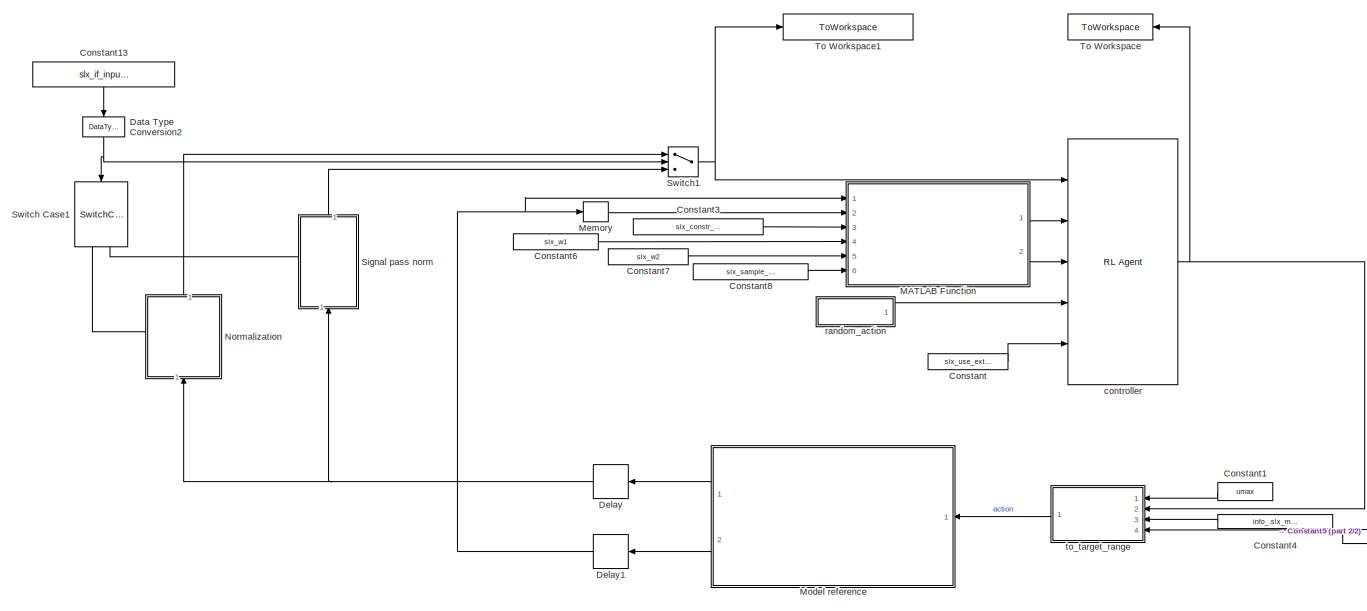
[diagram: root canvas - part 1/2, center side, full height]
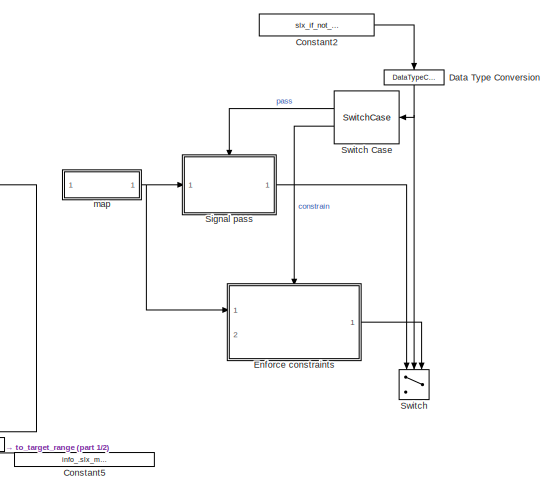
[diagram: root canvas - part 2/2, right side, full height]
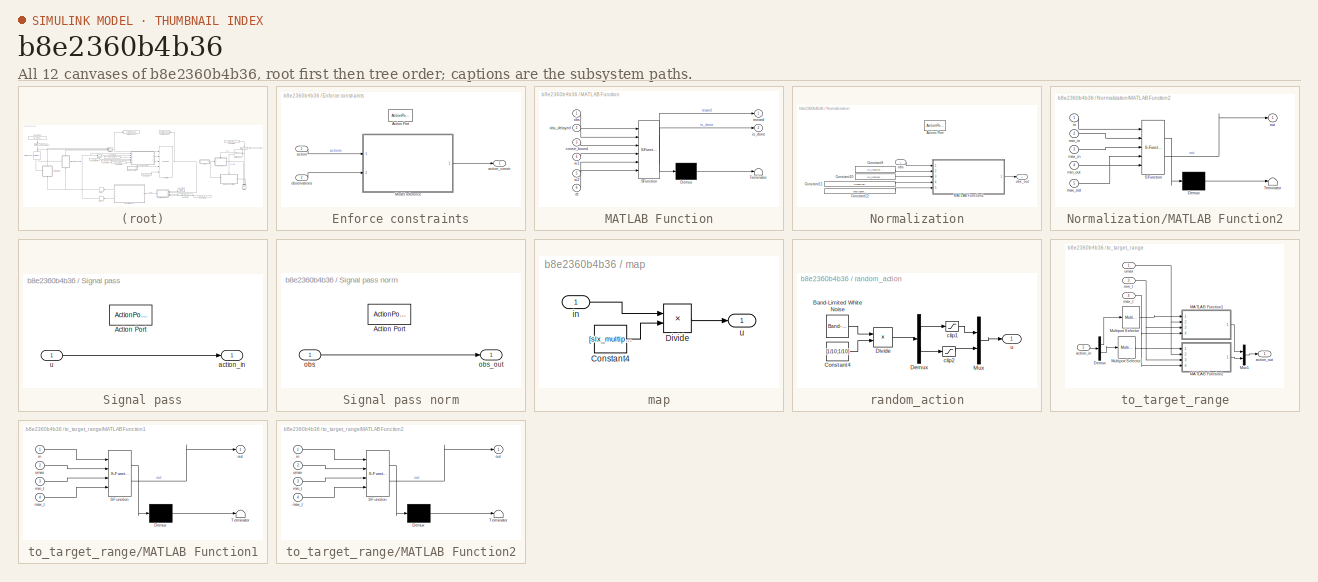
[diagram: thumbnail index - all 12 canvases of the model, root first then tree order]
MODEL slx_b8e2360b4b36
KIND model
CONFIG AbsTol = auto
CONFIG EnableMultiTasking = off
CONFIG FixedStep = sample_time_for_controller
CONFIG MaxStep = auto
CONFIG MinStep = auto
CONFIG RelTol = 1e-3
CONFIG SampleTimeConstraint = Unconstrained
CONFIG SolverName = FixedStepAuto
CONFIG StartTime = 0.0
CONFIG StopTime = 10.0
BLOCK [Constant] Constant
  Value = slx_use_external
BLOCK [Constant] Constant1
  NameLocation = top
  Value = umax
BLOCK [Constant] Constant13
  NameLocation = left
  Value = slx_if_input_normalization
BLOCK [Constant] Constant2
  Commented = on
  Value = slx_if_not_constrain
BLOCK [Constant] Constant3
  Value = slx_constr_bound
BLOCK [Constant] Constant4
  NameLocation = top
  Value = info_.slx_min_t
BLOCK [Constant] Constant5
  NameLocation = top
  Value = info_.slx_max_t
BLOCK [Constant] Constant6
  Value = slx_w1
BLOCK [Constant] Constant7
  Value = slx_w2
BLOCK [Constant] Constant8
  Value = slx_sample_time
BLOCK [DataTypeConversion] Data Type Conversion
  Commented = on
  NameLocation = left
  RndMeth = Floor
  SaturateOnIntegerOverflow = off
BLOCK [DataTypeConversion] Data Type Conversion2
  NameLocation = left
  OutDataTypeStr = uint8
  RndMeth = Floor
  SaturateOnIntegerOverflow = off
BLOCK [Delay] Delay
  DelayLength = 1
  InitialCondition = 0
  InputPortMap = u0
  NameLocation = top
  Ports = [1, 1]
BLOCK [Delay] Delay1
  DelayLength = 1
  InitialCondition = 0
  InputPortMap = u0
  NameLocation = top
  Ports = [1, 1]
BLOCK [SubSystem] Enforce constraints
  Commented = on
  Ports = [2, 1, 0, 0, 0, 0, 0, 1]
  RequestExecContextInheritance = off
  TreatAsAtomicUnit = on
BLOCK [ActionPort] Enforce constraints/Action Port
BLOCK [ModelReference] Enforce constraints/Model reference
  ModelNameDialog = enforce_constraint.slx
  ModelReferenceVersion = 1.89
  Ports = [2, 1]
BLOCK [Inport] Enforce constraints/action
  PortDimensions = [agent_act_number  1 ]
BLOCK [Outport] Enforce constraints/action_constr
BLOCK [Inport] Enforce constraints/observations
  Port = 2
  PortDimensions = [agent_obs_number  1]
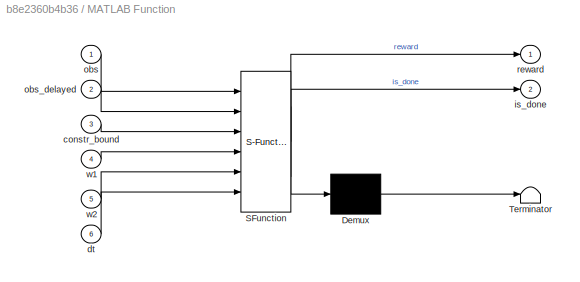
BLOCK [SubSystem] MATLAB Function
  ErrorFcn = Stateflow.Translate.translate
  PermitHierarchicalResolution = ExplicitOnly
  Ports = [6, 2]
  RequestExecContextInheritance = off
  SFBlockType = MATLAB Function
  TreatAsAtomicUnit = on
BLOCK [Demux] MATLAB Function/ Demux 
  Outputs = 1
  Ports = [1, 1]
BLOCK [S-Function] MATLAB Function/ SFunction 
  EnableBusSupport = on
  FunctionName = sf_sfun
  PortCounts = [6 3]
  Ports = [6, 3]
  SFcnIsStateOwnerBlock = off
  SFunctionDeploymentMode = off
  Tag = Stateflow S-Function 2
BLOCK [Terminator] MATLAB Function/ Terminator 
BLOCK [Inport] MATLAB Function/constr_bound
  Port = 3
BLOCK [Inport] MATLAB Function/dt
  Port = 6
BLOCK [Outport] MATLAB Function/is_done
  Port = 2
BLOCK [Inport] MATLAB Function/obs
BLOCK [Inport] MATLAB Function/obs_delayed
  Port = 2
BLOCK [Outport] MATLAB Function/reward
BLOCK [Inport] MATLAB Function/w1
  Port = 4
BLOCK [Inport] MATLAB Function/w2
  Port = 5
BLOCK [Memory] Memory
BLOCK [ModelReference] Model reference
  ModelNameDialog = dynamic_model_euler.slx
  ModelReferenceVersion = 6.750
  NameLocation = top
  Ports = [1, 2]
BLOCK [SubSystem] Normalization
  NameLocation = right
  Ports = [1, 1, 0, 0, 0, 0, 0, 1]
  RequestExecContextInheritance = off
  TreatAsAtomicUnit = on
BLOCK [ActionPort] Normalization/Action Port
  ActionPortLabel = case [ 1 ]:
BLOCK [Constant] Normalization/Constant10
  Value = slx_ObsMaximal
BLOCK [Constant] Normalization/Constant11
  Value = -1*ones([agent_obs_number 1])
BLOCK [Constant] Normalization/Constant12
  Value = ones([agent_obs_number 1])
BLOCK [Constant] Normalization/Constant9
  Value = slx_ObsMinimal
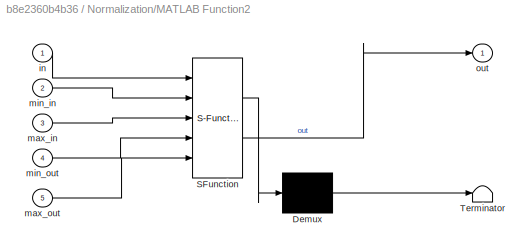
BLOCK [SubSystem] Normalization/MATLAB Function2
  ErrorFcn = Stateflow.Translate.translate
  PermitHierarchicalResolution = ExplicitOnly
  Ports = [5, 1]
  RequestExecContextInheritance = off
  SFBlockType = MATLAB Function
  TreatAsAtomicUnit = on
BLOCK [Demux] Normalization/MATLAB Function2/ Demux 
  Outputs = 1
  Ports = [1, 1]
BLOCK [S-Function] Normalization/MATLAB Function2/ SFunction 
  EnableBusSupport = on
  FunctionName = sf_sfun
  PortCounts = [5 2]
  Ports = [5, 2]
  SFcnIsStateOwnerBlock = off
  SFunctionDeploymentMode = off
  Tag = Stateflow S-Function 5
BLOCK [Terminator] Normalization/MATLAB Function2/ Terminator 
BLOCK [Inport] Normalization/MATLAB Function2/in
BLOCK [Inport] Normalization/MATLAB Function2/max_in
  Port = 3
BLOCK [Inport] Normalization/MATLAB Function2/max_out
  Port = 5
BLOCK [Inport] Normalization/MATLAB Function2/min_in
  Port = 2
BLOCK [Inport] Normalization/MATLAB Function2/min_out
  Port = 4
BLOCK [Outport] Normalization/MATLAB Function2/out
BLOCK [Inport] Normalization/obs
BLOCK [Outport] Normalization/obs_out
BLOCK [SubSystem] Signal pass
  Commented = on
  Ports = [1, 1, 0, 0, 0, 0, 0, 1]
  RequestExecContextInheritance = off
  TreatAsAtomicUnit = on
BLOCK [SubSystem] Signal pass norm
  NameLocation = right
  Ports = [1, 1, 0, 0, 0, 0, 0, 1]
  RequestExecContextInheritance = off
  TreatAsAtomicUnit = on
BLOCK [ActionPort] Signal pass norm/Action Port
  ActionPortLabel = default:
BLOCK [Inport] Signal pass norm/obs
BLOCK [Outport] Signal pass norm/obs_out
BLOCK [ActionPort] Signal pass/Action Port
BLOCK [Outport] Signal pass/action_in
BLOCK [Inport] Signal pass/u
BLOCK [Switch] Switch
  Commented = on
  Criteria = u2 > Threshold
  InputSameDT = off
  NameLocation = right
  SaturateOnIntegerOverflow = off
BLOCK [SwitchCase] Switch Case
  Commented = on
  NameLocation = top
  Ports = [1, 2]
BLOCK [SwitchCase] Switch Case1
  NameLocation = left
  Ports = [1, 2]
BLOCK [Switch] Switch1
  Criteria = u2 ~= 0
  InputSameDT = off
  NameLocation = top
  SaturateOnIntegerOverflow = off
BLOCK [ToWorkspace] To Workspace
  FixptAsFi = on
  MaxDataPoints = inf
  NameLocation = top
  Ports = [1]
  SampleTime = -1
  SaveFormat = Timeseries
  VariableName = agent_action
BLOCK [ToWorkspace] To Workspace1
  FixptAsFi = on
  MaxDataPoints = inf
  Ports = [1]
  SampleTime = -1
  SaveFormat = Timeseries
  VariableName = mapped_observations
BLOCK [Reference] controller  REF=rllib/RL Agent
  Ports = [5, 1]
  SourceBlock = rllib/RL Agent
  SourceProductBaseCode = RL
  SourceType = RL Agent
BLOCK [SubSystem] map
  Commented = on
  Ports = [1, 1]
  RequestExecContextInheritance = off
BLOCK [Constant] map/Constant4
  Value = [slx_multiplier;slx_multiplier]
BLOCK [Product] map/Divide
  Inputs = **
  Ports = [2, 1]
BLOCK [Inport] map/in
BLOCK [Outport] map/u
BLOCK [SubSystem] random_action
  Ports = [0, 1]
  RequestExecContextInheritance = off
BLOCK [Reference] random_action/Band-Limited White Noise  REF=simulink/Sources/Band-Limited
White Noise
  Ports = [0, 1]
  SourceBlock = simulink/Sources/Band-Limited\nWhite Noise
  SourceProductBaseCode = SL
  SourceType = Band-Limited White Noise.
BLOCK [Constant] random_action/Constant4
  Value = [1/10;1/10]
BLOCK [Demux] random_action/Demux
  Outputs = 2
  Ports = [1, 2]
BLOCK [Product] random_action/Divide
  Inputs = **
  Ports = [2, 1]
BLOCK [Mux] random_action/Mux
  DisplayOption = bar
  Inputs = 2
  Ports = [2, 1]
BLOCK [Saturate] random_action/clip1
  LowerLimit = -1
  UpperLimit = 1
BLOCK [Saturate] random_action/clip2
  LowerLimit = -1
  UpperLimit = 1
BLOCK [Outport] random_action/u
BLOCK [SubSystem] to_target_range
  NameLocation = top
  Ports = [4, 1]
  RequestExecContextInheritance = off
BLOCK [Demux] to_target_range/Demux
  Outputs = 2
  Ports = [1, 2]
BLOCK [SubSystem] to_target_range/MATLAB Function1
  ErrorFcn = Stateflow.Translate.translate
  PermitHierarchicalResolution = ExplicitOnly
  Ports = [4, 1]
  RequestExecContextInheritance = off
  SFBlockType = MATLAB Function
  TreatAsAtomicUnit = on
BLOCK [Demux] to_target_range/MATLAB Function1/ Demux 
  Outputs = 1
  Ports = [1, 1]
BLOCK [S-Function] to_target_range/MATLAB Function1/ SFunction 
  EnableBusSupport = on
  FunctionName = sf_sfun
  PortCounts = [4 2]
  Ports = [4, 2]
  SFcnIsStateOwnerBlock = off
  SFunctionDeploymentMode = off
  Tag = Stateflow S-Function 1
BLOCK [Terminator] to_target_range/MATLAB Function1/ Terminator 
BLOCK [Inport] to_target_range/MATLAB Function1/in
BLOCK [Inport] to_target_range/MATLAB Function1/max_t
  Port = 4
BLOCK [Inport] to_target_range/MATLAB Function1/min_t
  Port = 3
BLOCK [Outport] to_target_range/MATLAB Function1/out
BLOCK [Inport] to_target_range/MATLAB Function1/umax
  Port = 2
BLOCK [SubSystem] to_target_range/MATLAB Function2
  ErrorFcn = Stateflow.Translate.translate
  PermitHierarchicalResolution = ExplicitOnly
  Ports = [4, 1]
  RequestExecContextInheritance = off
  SFBlockType = MATLAB Function
  TreatAsAtomicUnit = on
BLOCK [Demux] to_target_range/MATLAB Function2/ Demux 
  Outputs = 1
  Ports = [1, 1]
BLOCK [S-Function] to_target_range/MATLAB Function2/ SFunction 
  EnableBusSupport = on
  FunctionName = sf_sfun
  PortCounts = [4 2]
  Ports = [4, 2]
  SFcnIsStateOwnerBlock = off
  SFunctionDeploymentMode = off
  Tag = Stateflow S-Function 3
BLOCK [Terminator] to_target_range/MATLAB Function2/ Terminator 
BLOCK [Inport] to_target_range/MATLAB Function2/in
BLOCK [Inport] to_target_range/MATLAB Function2/max_t
  Port = 4
BLOCK [Inport] to_target_range/MATLAB Function2/min_t
  Port = 3
BLOCK [Outport] to_target_range/MATLAB Function2/out
BLOCK [Inport] to_target_range/MATLAB Function2/umax
  Port = 2
BLOCK [Reference] to_target_range/Multiport Selector  REF=dspindex/Multiport
Selector
  Ports = [1, 1]
  SourceBlock = dspindex/Multiport\nSelector
  SourceProductBaseCode = DS
  SourceType = Multiport Selector
BLOCK [Reference] to_target_range/Multiport Selector1  REF=dspindex/Multiport
Selector
  Ports = [1, 1]
  SourceBlock = dspindex/Multiport\nSelector
  SourceProductBaseCode = DS
  SourceType = Multiport Selector
BLOCK [Mux] to_target_range/Mux1
  DisplayOption = bar
  Inputs = 2
  Ports = [2, 1]
BLOCK [Inport] to_target_range/action_in
  Port = 2
  PortDimensions = [agent_act_number 1 ]
BLOCK [Outport] to_target_range/action_out
  PortDimensions = [agent_act_number 1]
BLOCK [Inport] to_target_range/max_t
  Port = 4
BLOCK [Inport] to_target_range/min_t
  Port = 3
BLOCK [Inport] to_target_range/umax
LINE Constant13:1 -> Data Type Conversion2:1
LINE Constant1:1 -> to_target_range:1
LINE Constant2:1 -> Data Type Conversion:1
LINE Constant3:1 -> MATLAB Function:3
LINE Constant4:1 -> to_target_range:3
LINE Constant5:1 -> to_target_range:4
LINE Constant6:1 -> MATLAB Function:4
LINE Constant7:1 -> MATLAB Function:5
LINE Constant8:1 -> MATLAB Function:6
LINE Constant:1 -> controller:5
NET Data Type Conversion2:1 -> Switch Case1:1, Switch1:2
NET Data Type Conversion:1 -> Switch Case:1, Switch:2
NET Delay1:1 -> MATLAB Function:1, Memory:1
NET Delay:1 -> Normalization:1, Signal pass norm:1
LINE Enforce constraints/Model reference:1 -> Enforce constraints/action_constr:1
LINE Enforce constraints/action:1 -> Enforce constraints/Model reference:1
LINE Enforce constraints/observations:1 -> Enforce constraints/Model reference:2
LINE Enforce constraints:1 -> Switch:3
LINE MATLAB Function:1 -> controller:2
LINE MATLAB Function:2 -> controller:3
LINE Memory:1 -> MATLAB Function:2
LINE Model reference:1 -> Delay:1
LINE Model reference:2 -> Delay1:1
LINE Normalization/Constant10:1 -> Normalization/MATLAB Function2:3
LINE Normalization/Constant11:1 -> Normalization/MATLAB Function2:4
LINE Normalization/Constant12:1 -> Normalization/MATLAB Function2:5
LINE Normalization/Constant9:1 -> Normalization/MATLAB Function2:2
LINE Normalization/MATLAB Function2:1 -> Normalization/obs_out:1
LINE Normalization/obs:1 -> Normalization/MATLAB Function2:1
LINE Normalization:1 -> Switch1:1
LINE Signal pass norm/obs:1 -> Signal pass norm/obs_out:1
LINE Signal pass norm:1 -> Switch1:3
LINE Signal pass/u:1 -> Signal pass/action_in:1
LINE Signal pass:1 -> Switch:1
LINE Switch Case1:1 -> Normalization:ifaction
LINE Switch Case1:2 -> Signal pass norm:ifaction
LINE Switch Case:1 -> Signal pass:ifaction
LINE Switch Case:2 -> Enforce constraints:ifaction
NET Switch1:1 -> To Workspace1:1, controller:1
NET controller:1 -> To Workspace:1, to_target_range:2
LINE map/Constant4:1 -> map/Divide:2
LINE map/Divide:1 -> map/u:1
LINE map/in:1 -> map/Divide:1
NET map:1 -> Enforce constraints:1, Signal pass:1
LINE random_action/Band-Limited White Noise:1 -> random_action/Divide:1
LINE random_action/Constant4:1 -> random_action/Divide:2
LINE random_action/Demux:1 -> random_action/clip1:1
LINE random_action/Demux:2 -> random_action/clip2:1
LINE random_action/Divide:1 -> random_action/Demux:1
LINE random_action/Mux:1 -> random_action/u:1
LINE random_action/clip1:1 -> random_action/Mux:1
LINE random_action/clip2:1 -> random_action/Mux:2
LINE random_action:1 -> controller:4
LINE to_target_range/Demux:1 -> to_target_range/Multiport Selector:1
LINE to_target_range/Demux:2 -> to_target_range/Multiport Selector1:1
LINE to_target_range/MATLAB Function1:1 -> to_target_range/Mux1:1
LINE to_target_range/MATLAB Function2:1 -> to_target_range/Mux1:2
LINE to_target_range/Multiport Selector1:1 -> to_target_range/MATLAB Function2:1
LINE to_target_range/Multiport Selector:1 -> to_target_range/MATLAB Function1:1
LINE to_target_range/Mux1:1 -> to_target_range/action_out:1
LINE to_target_range/action_in:1 -> to_target_range/Demux:1
NET to_target_range/max_t:1 -> to_target_range/MATLAB Function1:4, to_target_range/MATLAB Function2:4
NET to_target_range/min_t:1 -> to_target_range/MATLAB Function1:3, to_target_range/MATLAB Function2:3
NET to_target_range/umax:1 -> to_target_range/MATLAB Function1:2, to_target_range/MATLAB Function2:2
LINE to_target_range:1 -> Model reference:1
note: NET lines group one-source signal fan-out (src -> all destinations, sorted); 1:1 wires keep LINE
CHART to_target_range/MATLAB Function1 states=1 transitions=1
  STATE_LABEL 'eML_blk_kernel()'
  STATE_LABEL 'SCRIPT:\nfunction out = mapping(in,umax, min_t, max_t)\n    out = [map_m(in(1), min_t, max_t, -umax, umax) ];\n'
CHART MATLAB Function states=1 transitions=1
  STATE_LABEL 'eML_blk_kernel()'
  STATE_LABEL 'SCRIPT:\nfunction [reward, is_done] = reward_function(obs, obs_delayed, constr_bound, w1, w2, dt)\n\n% observations[1] = w_p1\n% observations[2] = w_p2\n% observations[3] = w_p3\n% observations[4] = angle_zb_zw\n% global episode_counter;\n% episode_counter = episode_counter + 1;\n\n% mean_mag_Hdot = (abs(now(1))+abs(minus1(1))+abs(minus2(3)))/3;\n% mean_mag_udot = (abs(now(2))+abs(minus1(2))+abs(minus2(2)))/...<+470ch>'
CHART to_target_range/MATLAB Function2 states=1 transitions=1
  STATE_LABEL 'eML_blk_kernel()'
  STATE_LABEL 'SCRIPT:\nfunction out = mapping(in,umax, min_t, max_t)\n    out = [map_m(in(1), min_t, max_t, -umax, umax) ];\n'
CHART Normalization/MATLAB Function2 states=1 transitions=1
  STATE_LABEL 'eML_blk_kernel()'
  STATE_LABEL 'SCRIPT:\nfunction out = mapping(in, min_in, max_in, min_out, max_out)\n    out = map_m(in, min_in, max_in, min_out,max_out );\n'
CHART  states=0 transitions=0
CHART  states=0 transitions=0
CHART  states=0 transitions=0
CHART  states=0 transitions=0
